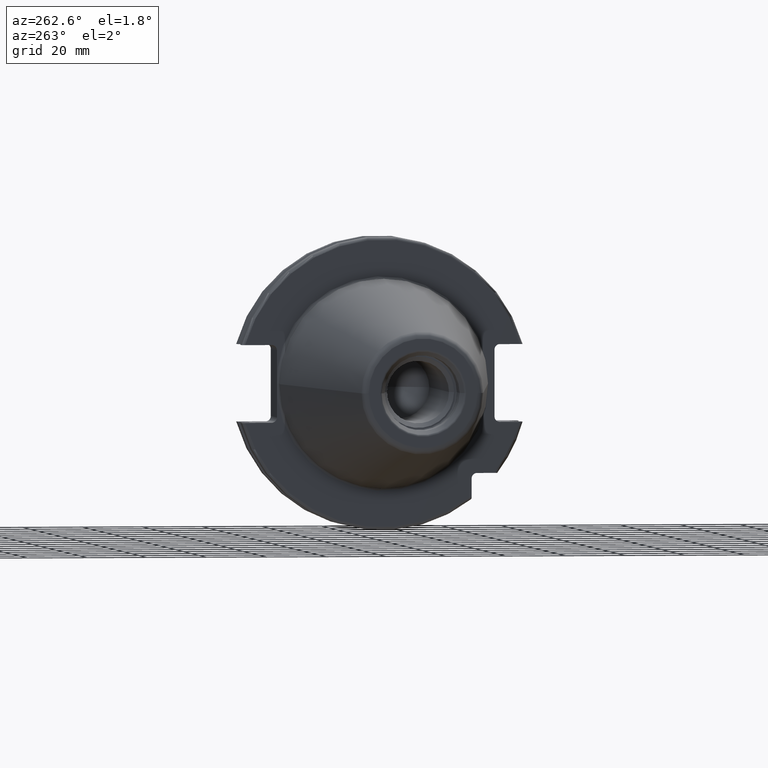
[diagram: clean part render]
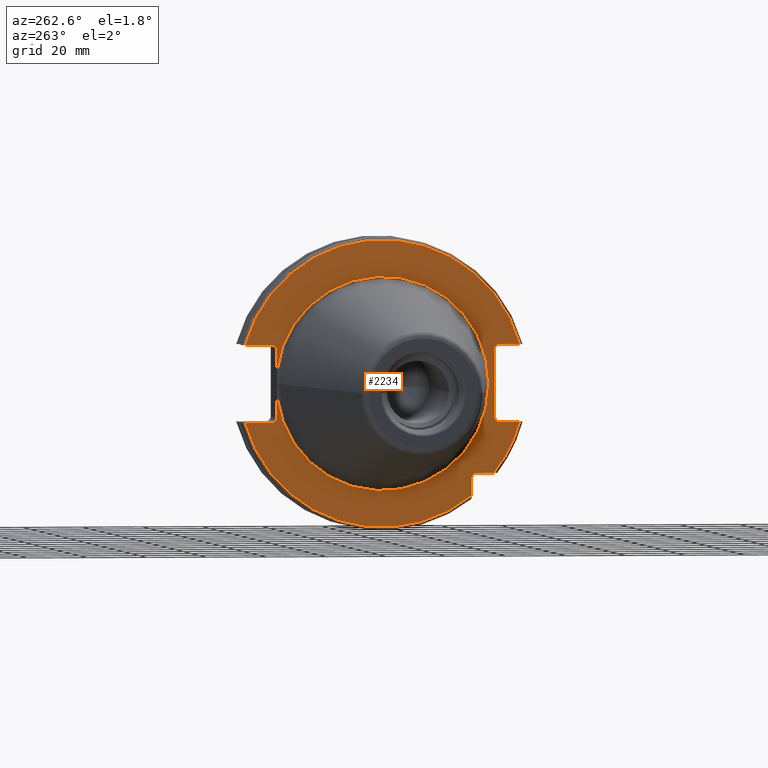
[diagram: same view with one face highlighted and labeled with its STEP entity id]
A machine part, auxiliary view. The second image highlights one B-rep face of the part: STEP entity #2234.
In plain terms, the highlighted planar face has unit normal (1, 0, 0).
Its self-contained STEP definition (entity closure, byte-faithful):
#105=CARTESIAN_POINT('',(3.2E0,3.53E1,-4.414818795828E0));
#117=CARTESIAN_POINT('',(3.2E0,0.E0,0.E0));
#118=DIRECTION('',(-1.E0,0.E0,0.E0));
#119=DIRECTION('',(0.E0,9.922698524245E-1,-1.240989120402E-1));
#120=AXIS2_PLACEMENT_3D('',#117,#118,#119);
#436=CARTESIAN_POINT('',(3.2E0,3.705E1,-1.115E1));
#437=DIRECTION('',(1.E0,0.E0,0.E0));
#438=DIRECTION('',(0.E0,-1.E0,0.E0));
#439=AXIS2_PLACEMENT_3D('',#436,#437,#438);
#445=DIRECTION('',(0.E0,1.E0,0.E0));
#446=VECTOR('',#445,6.711493733886E0);
#447=CARTESIAN_POINT('',(3.2E0,-4.596149373389E1,1.29E1));
#448=LINE('',#447,#446);
#449=DIRECTION('',(0.E0,0.E0,1.E0));
#450=VECTOR('',#449,2.23E1);
#451=CARTESIAN_POINT('',(3.2E0,-3.75E1,-1.115E1));
#452=LINE('',#451,#450);
#453=DIRECTION('',(0.E0,1.E0,0.E0));
#454=VECTOR('',#453,6.711493733886E0);
#455=CARTESIAN_POINT('',(3.2E0,-4.596149373389E1,-1.29E1));
#456=LINE('',#455,#454);
#457=CARTESIAN_POINT('',(3.2E0,0.E0,0.E0));
#458=DIRECTION('',(-1.E0,0.E0,0.E0));
#459=DIRECTION('',(0.E0,-7.803888060170E-1,-6.252945797329E-1));
#460=AXIS2_PLACEMENT_3D('',#457,#458,#459);
#462=DIRECTION('',(0.E0,-1.E0,0.E0));
#463=VECTOR('',#462,5.653810627237E0);
#464=CARTESIAN_POINT('',(3.2E0,-3.16E1,-2.985E1));
#465=LINE('',#464,#463);
#466=DIRECTION('',(0.E0,0.E0,1.E0));
#467=VECTOR('',#466,5.653810627237E0);
#468=CARTESIAN_POINT('',(3.2E0,-2.985E1,-3.725381062724E1));
#469=LINE('',#468,#467);
#470=CARTESIAN_POINT('',(3.2E0,0.E0,0.E0));
#471=DIRECTION('',(-1.E0,0.E0,0.E0));
#472=DIRECTION('',(0.E0,9.627964123359E-1,-2.702278083268E-1));
#473=AXIS2_PLACEMENT_3D('',#470,#471,#472);
#475=DIRECTION('',(0.E0,-1.E0,0.E0));
#476=VECTOR('',#475,8.911493733886E0);
#477=CARTESIAN_POINT('',(3.2E0,4.596149373389E1,-1.29E1));
#478=LINE('',#477,#476);
#479=DIRECTION('',(0.E0,0.E0,-1.E0));
#480=VECTOR('',#479,6.735181204172E0);
#481=CARTESIAN_POINT('',(3.2E0,3.53E1,-4.414818795828E0));
#482=LINE('',#481,#480);
#483=DIRECTION('',(0.E0,0.E0,-1.E0));
#484=VECTOR('',#483,6.735181204172E0);
#485=CARTESIAN_POINT('',(3.2E0,3.53E1,1.115E1));
#486=LINE('',#485,#484);
#487=DIRECTION('',(0.E0,-1.E0,0.E0));
#488=VECTOR('',#487,8.911493733886E0);
#489=CARTESIAN_POINT('',(3.2E0,4.596149373389E1,1.29E1));
#490=LINE('',#489,#488);
#491=CARTESIAN_POINT('',(3.2E0,0.E0,0.E0));
#492=DIRECTION('',(1.E0,0.E0,0.E0));
#493=DIRECTION('',(0.E0,9.627964123359E-1,2.702278083268E-1));
#494=AXIS2_PLACEMENT_3D('',#491,#492,#493);
#505=CARTESIAN_POINT('',(3.2E0,-3.925E1,1.115E1));
#506=DIRECTION('',(1.E0,0.E0,0.E0));
#507=DIRECTION('',(0.E0,1.E0,0.E0));
#508=AXIS2_PLACEMENT_3D('',#505,#506,#507);
#523=CARTESIAN_POINT('',(3.2E0,-3.925E1,-1.115E1));
#524=DIRECTION('',(1.E0,0.E0,0.E0));
#525=DIRECTION('',(0.E0,0.E0,-1.E0));
#526=AXIS2_PLACEMENT_3D('',#523,#524,#525);
#647=CARTESIAN_POINT('',(3.2E0,4.596149373389E1,-1.29E1));
#682=CARTESIAN_POINT('',(3.2E0,-4.596149373389E1,-1.29E1));
#689=CARTESIAN_POINT('',(3.2E0,-3.725381062724E1,-2.985E1));
#709=CARTESIAN_POINT('',(3.2E0,-3.16E1,-3.16E1));
#710=DIRECTION('',(1.E0,0.E0,0.E0));
#711=DIRECTION('',(0.E0,1.E0,0.E0));
#712=AXIS2_PLACEMENT_3D('',#709,#710,#711);
#794=CARTESIAN_POINT('',(3.2E0,3.705E1,1.115E1));
#795=DIRECTION('',(1.E0,0.E0,0.E0));
#796=DIRECTION('',(0.E0,0.E0,1.E0));
#797=AXIS2_PLACEMENT_3D('',#794,#795,#796);
#880=CARTESIAN_POINT('',(3.2E0,4.596149373389E1,1.29E1));
#887=CARTESIAN_POINT('',(3.2E0,-4.596149373389E1,1.29E1));
#1195=CARTESIAN_POINT('',(3.2E0,3.53E1,4.414818795828E0));
#1206=CARTESIAN_POINT('',(3.2E0,0.E0,0.E0));
#1207=DIRECTION('',(1.E0,0.E0,0.E0));
#1208=DIRECTION('',(0.E0,9.922698524245E-1,1.240989120402E-1));
#1209=AXIS2_PLACEMENT_3D('',#1206,#1207,#1208);
#1429=CARTESIAN_POINT('',(3.2E0,-3.5575E1,0.E0));
#1431=VERTEX_POINT('',#1429);
#1555=VERTEX_POINT('',#1195);
#1557=VERTEX_POINT('',#105);
#1560=VERTEX_POINT('',#880);
#1561=VERTEX_POINT('',#887);
#1564=VERTEX_POINT('',#647);
#1565=VERTEX_POINT('',#682);
#1588=CARTESIAN_POINT('',(3.2E0,-2.985E1,-3.725381062724E1));
#1589=VERTEX_POINT('',#1588);
#1591=CARTESIAN_POINT('',(3.2E0,-3.75E1,-1.115E1));
#1593=VERTEX_POINT('',#1591);
#1595=CARTESIAN_POINT('',(3.2E0,-3.925E1,-1.29E1));
#1597=VERTEX_POINT('',#1595);
#1599=CARTESIAN_POINT('',(3.2E0,-3.925E1,1.29E1));
#1601=VERTEX_POINT('',#1599);
#1603=CARTESIAN_POINT('',(3.2E0,-3.75E1,1.115E1));
#1605=VERTEX_POINT('',#1603);
#1607=CARTESIAN_POINT('',(3.2E0,3.53E1,1.115E1));
#1609=VERTEX_POINT('',#1607);
#1611=CARTESIAN_POINT('',(3.2E0,3.705E1,1.29E1));
#1613=VERTEX_POINT('',#1611);
#1615=CARTESIAN_POINT('',(3.2E0,3.705E1,-1.29E1));
#1617=VERTEX_POINT('',#1615);
#1619=CARTESIAN_POINT('',(3.2E0,3.53E1,-1.115E1));
#1621=VERTEX_POINT('',#1619);
#1626=CARTESIAN_POINT('',(3.2E0,-2.985E1,-3.16E1));
#1627=CARTESIAN_POINT('',(3.2E0,-3.16E1,-2.985E1));
#1628=VERTEX_POINT('',#1626);
#1629=VERTEX_POINT('',#1627);
#1691=VERTEX_POINT('',#689);
#2194=CARTESIAN_POINT('',(3.2E0,0.E0,0.E0));
#2195=DIRECTION('',(1.E0,0.E0,0.E0));
#2196=DIRECTION('',(0.E0,-1.E0,0.E0));
#2197=AXIS2_PLACEMENT_3D('',#2194,#2195,#2196);
#2198=PLANE('',#2197);
#2200=ORIENTED_EDGE('',*,*,#2199,.T.);
#2202=ORIENTED_EDGE('',*,*,#2201,.F.);
#2204=ORIENTED_EDGE('',*,*,#2203,.F.);
#2206=ORIENTED_EDGE('',*,*,#2205,.F.);
#2208=ORIENTED_EDGE('',*,*,#2207,.F.);
#2210=ORIENTED_EDGE('',*,*,#2209,.F.);
#2212=ORIENTED_EDGE('',*,*,#2211,.F.);
#2214=ORIENTED_EDGE('',*,*,#2213,.F.);
#2216=ORIENTED_EDGE('',*,*,#2215,.F.);
#2218=ORIENTED_EDGE('',*,*,#2217,.F.);
#2219=ORIENTED_EDGE('',*,*,#2166,.T.);
#2220=ORIENTED_EDGE('',*,*,#2155,.F.);
#2221=ORIENTED_EDGE('',*,*,#1859,.F.);
#2222=ORIENTED_EDGE('',*,*,#1834,.T.);
#2224=ORIENTED_EDGE('',*,*,#2223,.F.);
#2225=ORIENTED_EDGE('',*,*,#1854,.F.);
#2227=ORIENTED_EDGE('',*,*,#2226,.F.);
#2229=ORIENTED_EDGE('',*,*,#2228,.F.);
#2231=ORIENTED_EDGE('',*,*,#2230,.T.);
#2232=EDGE_LOOP('',(#2200,#2202,#2204,#2206,#2208,#2210,#2212,#2214,#2216,#2218,
#2219,#2220,#2221,#2222,#2224,#2225,#2227,#2229,#2231));
#2233=FACE_OUTER_BOUND('',#2232,.F.);
#2234=ADVANCED_FACE('',(#2233),#2198,.F.);
#121=CIRCLE('',#120,3.5575E1);
#440=CIRCLE('',#439,1.75E0);
#461=CIRCLE('',#460,4.77375E1);
#474=CIRCLE('',#473,4.77375E1);
#495=CIRCLE('',#494,4.77375E1);
#509=CIRCLE('',#508,1.75E0);
#527=CIRCLE('',#526,1.75E0);
#713=CIRCLE('',#712,1.75E0);
#798=CIRCLE('',#797,1.75E0);
#1210=CIRCLE('',#1209,3.5575E1);
#1834=EDGE_CURVE('',#1557,#1431,#121,.T.);
#1854=EDGE_CURVE('',#1609,#1555,#486,.T.);
#1859=EDGE_CURVE('',#1557,#1621,#482,.T.);
#2155=EDGE_CURVE('',#1621,#1617,#440,.T.);
#2166=EDGE_CURVE('',#1564,#1617,#478,.T.);
#2199=EDGE_CURVE('',#1561,#1601,#448,.T.);
#2201=EDGE_CURVE('',#1605,#1601,#509,.T.);
#2203=EDGE_CURVE('',#1593,#1605,#452,.T.);
#2205=EDGE_CURVE('',#1597,#1593,#527,.T.);
#2207=EDGE_CURVE('',#1565,#1597,#456,.T.);
#2209=EDGE_CURVE('',#1691,#1565,#461,.T.);
#2211=EDGE_CURVE('',#1629,#1691,#465,.T.);
#2213=EDGE_CURVE('',#1628,#1629,#713,.T.);
#2215=EDGE_CURVE('',#1589,#1628,#469,.T.);
#2217=EDGE_CURVE('',#1564,#1589,#474,.T.);
#2223=EDGE_CURVE('',#1555,#1431,#1210,.T.);
#2226=EDGE_CURVE('',#1613,#1609,#798,.T.);
#2228=EDGE_CURVE('',#1560,#1613,#490,.T.);
#2230=EDGE_CURVE('',#1560,#1561,#495,.T.);